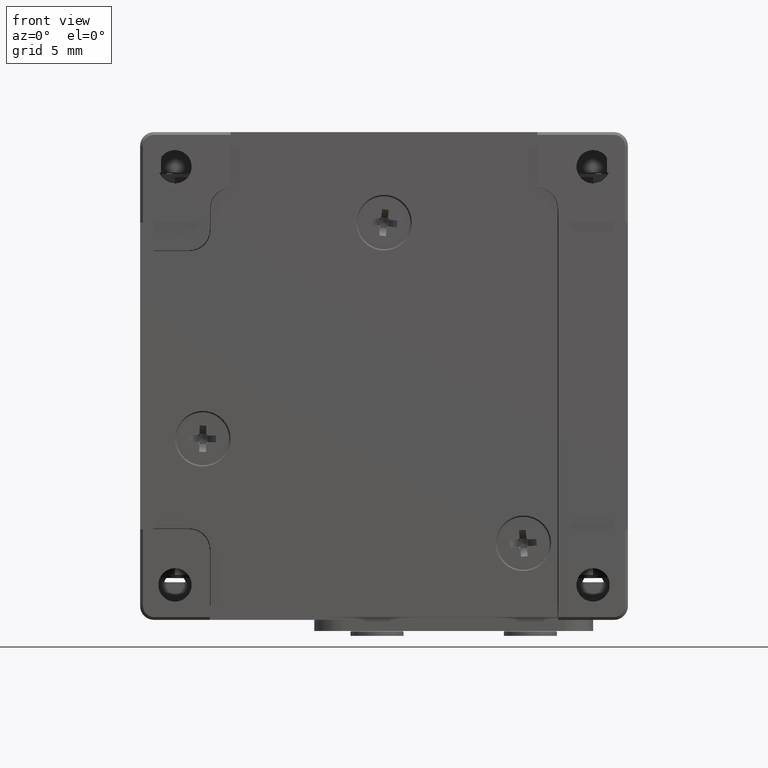
[diagram: clean part render]
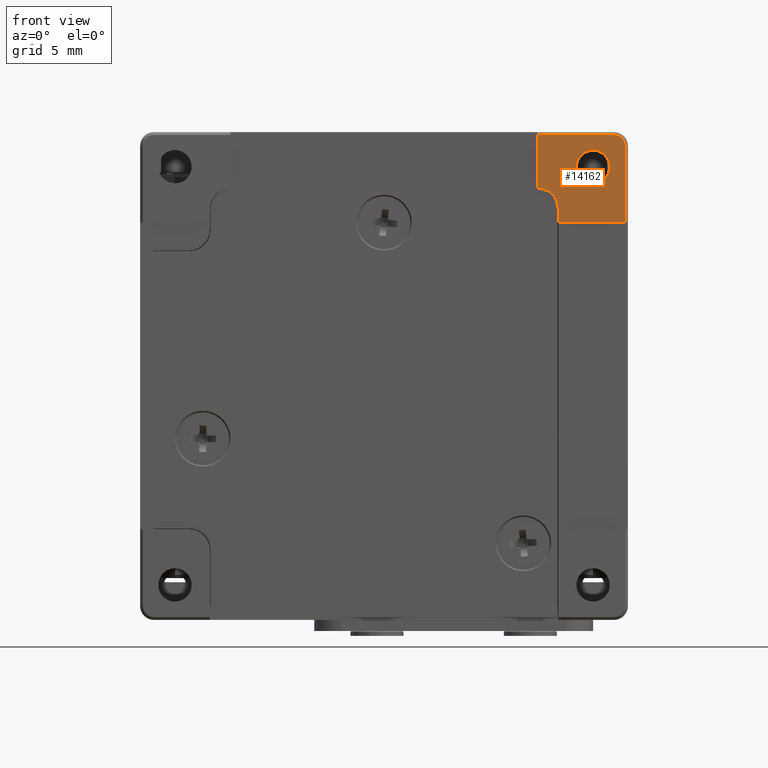
[diagram: same view with one face highlighted and labeled with its STEP entity id]
A machine part, front view. The second image highlights one B-rep face of the part: STEP entity #14162.
In plain terms, the highlighted planar face has unit normal (0, -1, 0).
Its self-contained STEP definition (entity closure, byte-faithful):
#871 = CARTESIAN_POINT ( 'NONE',  ( 15.00000000000000533, -8.673617379884035472E-16, 15.00000000000000000 ) ) ;
#947 = DIRECTION ( 'NONE',  ( 1.000000000000000000, 0.000000000000000000, 0.000000000000000000 ) ) ;
#1224 = CARTESIAN_POINT ( 'NONE',  ( 0.000000000000000000, 0.000000000000000000, 10.99999999999998934 ) ) ;
#1371 = EDGE_CURVE ( 'NONE', #12625, #8602, #16946, .T. ) ;
#1811 = EDGE_CURVE ( 'NONE', #16829, #5053, #13309, .T. ) ;
#1961 = CARTESIAN_POINT ( 'NONE',  ( 12.50000000000000000, 0.000000000000000000, 10.99999999999998934 ) ) ;
#2337 = CARTESIAN_POINT ( 'NONE',  ( 11.00000000000000355, 0.000000000000000000, 13.50000000000000178 ) ) ;
#2340 = DIRECTION ( 'NONE',  ( 0.000000000000000000, 0.000000000000000000, 1.000000000000000000 ) ) ;
#2597 = LINE ( 'NONE', #1224, #9422 ) ;
#3185 = VECTOR ( 'NONE', #947, 1000.000000000000000 ) ;
#3724 = CARTESIAN_POINT ( 'NONE',  ( 16.50000000000000000, 5.684344596586232701E-11, 16.50000000000000000 ) ) ;
#4644 = CARTESIAN_POINT ( 'NONE',  ( 0.000000000000000000, 0.000000000000000000, 0.000000000000000000 ) ) ;
#4783 = AXIS2_PLACEMENT_3D ( 'NONE', #18024, #6994, #11793 ) ;
#5053 = VERTEX_POINT ( 'NONE', #2337 ) ;
#5242 = AXIS2_PLACEMENT_3D ( 'NONE', #4644, #6204, #9423 ) ;
#5757 = CIRCLE ( 'NONE', #4783, 1.499999999999999556 ) ;
#5999 = EDGE_CURVE ( 'NONE', #13834, #13834, #12993, .T. ) ;
#6204 = DIRECTION ( 'NONE',  ( 0.000000000000000000, -1.000000000000000000, 0.000000000000000000 ) ) ;
#6800 = ORIENTED_EDGE ( 'NONE', *, *, #7137, .T. ) ;
#6838 = DIRECTION ( 'NONE',  ( 0.000000000000000000, -0.000000000000000000, -1.000000000000000000 ) ) ;
#6994 = DIRECTION ( 'NONE',  ( 0.000000000000000000, 1.000000000000000000, -0.000000000000000000 ) ) ;
#7071 = EDGE_LOOP ( 'NONE', ( #6800, #18258, #14188, #14159, #20023, #17676, #12961 ) ) ;
#7134 = LINE ( 'NONE', #16754, #15881 ) ;
#7137 = EDGE_CURVE ( 'NONE', #5053, #17583, #5757, .T. ) ;
#7498 = ORIENTED_EDGE ( 'NONE', *, *, #5999, .T. ) ;
#7598 = CARTESIAN_POINT ( 'NONE',  ( 17.30000000002185345, 8.526514184373917837E-11, 16.50000000000000000 ) ) ;
#8356 = CARTESIAN_POINT ( 'NONE',  ( 17.30000000000001137, 0.000000000000000000, 10.99999999999999467 ) ) ;
#8602 = VERTEX_POINT ( 'NONE', #7598 ) ;
#9046 = DIRECTION ( 'NONE',  ( -1.000000000000000000, 0.000000000000000000, -0.000000000000000000 ) ) ;
#9316 = CARTESIAN_POINT ( 'NONE',  ( 11.00000000000001066, 0.000000000000000000, 17.29999999998865334 ) ) ;
#9422 = VECTOR ( 'NONE', #9046, 1000.000000000000000 ) ;
#9423 = DIRECTION ( 'NONE',  ( 0.000000000000000000, -0.000000000000000000, -1.000000000000000000 ) ) ;
#10858 = EDGE_CURVE ( 'NONE', #16829, #15650, #15151, .T. ) ;
#11150 = VECTOR ( 'NONE', #15103, 1000.000000000000000 ) ;
#11336 = AXIS2_PLACEMENT_3D ( 'NONE', #871, #13585, #16735 ) ;
#11693 = EDGE_CURVE ( 'NONE', #8602, #15650, #12704, .T. ) ;
#11793 = DIRECTION ( 'NONE',  ( 0.000000000000000000, 0.000000000000000000, 1.000000000000000000 ) ) ;
#12274 = CARTESIAN_POINT ( 'NONE',  ( 15.00000000000000533, -4.510281037539706334E-16, 16.19999999999999929 ) ) ;
#12625 = VERTEX_POINT ( 'NONE', #8356 ) ;
#12654 = FACE_OUTER_BOUND ( 'NONE', #7071, .T. ) ;
#12704 = CIRCLE ( 'NONE', #19111, 0.7999999999774437542 ) ;
#12961 = ORIENTED_EDGE ( 'NONE', *, *, #1811, .T. ) ;
#12993 = CIRCLE ( 'NONE', #11336, 1.199999999999999734 ) ;
#13180 = CARTESIAN_POINT ( 'NONE',  ( 12.50000000000000000, 0.000000000000000000, 12.00000000000000178 ) ) ;
#13309 = LINE ( 'NONE', #16372, #11150 ) ;
#13510 = DIRECTION ( 'NONE',  ( -1.355252715782526432E-17, -1.000000000000000000, -0.000000000000000000 ) ) ;
#13585 = DIRECTION ( 'NONE',  ( -0.000000000000000000, 1.000000000000000000, -3.469446951953613696E-16 ) ) ;
#13758 = CARTESIAN_POINT ( 'NONE',  ( 0.000000000000000000, 0.000000000000000000, 17.30000000000001137 ) ) ;
#13834 = VERTEX_POINT ( 'NONE', #12274 ) ;
#14159 = ORIENTED_EDGE ( 'NONE', *, *, #1371, .T. ) ;
#14162 = ADVANCED_FACE ( 'NONE', ( #14335, #12654 ), #20678, .T. ) ;
#14188 = ORIENTED_EDGE ( 'NONE', *, *, #15781, .F. ) ;
#14335 = FACE_BOUND ( 'NONE', #14725, .T. ) ;
#14725 = EDGE_LOOP ( 'NONE', ( #7498 ) ) ;
#15103 = DIRECTION ( 'NONE',  ( 0.000000000000000000, -0.000000000000000000, -1.000000000000000000 ) ) ;
#15151 = LINE ( 'NONE', #13758, #3185 ) ;
#15164 = VECTOR ( 'NONE', #2340, 1000.000000000000000 ) ;
#15650 = VERTEX_POINT ( 'NONE', #17884 ) ;
#15781 = EDGE_CURVE ( 'NONE', #12625, #17182, #2597, .T. ) ;
#15881 = VECTOR ( 'NONE', #6838, 1000.000000000000000 ) ;
#16372 = CARTESIAN_POINT ( 'NONE',  ( 11.00000000000000711, 0.000000000000000000, 0.000000000000000000 ) ) ;
#16637 = CARTESIAN_POINT ( 'NONE',  ( 17.30000000000001137, 0.000000000000000000, 0.000000000000000000 ) ) ;
#16735 = DIRECTION ( 'NONE',  ( 0.000000000000000000, 3.469446951953608272E-16, 1.000000000000000000 ) ) ;
#16754 = CARTESIAN_POINT ( 'NONE',  ( 12.50000000000000000, 0.000000000000000000, 0.000000000000000000 ) ) ;
#16829 = VERTEX_POINT ( 'NONE', #9316 ) ;
#16946 = LINE ( 'NONE', #16637, #15164 ) ;
#17182 = VERTEX_POINT ( 'NONE', #1961 ) ;
#17583 = VERTEX_POINT ( 'NONE', #13180 ) ;
#17676 = ORIENTED_EDGE ( 'NONE', *, *, #10858, .F. ) ;
#17884 = CARTESIAN_POINT ( 'NONE',  ( 16.50000000000000711, 2.842172298293116350E-11, 17.30000000002843308 ) ) ;
#18024 = CARTESIAN_POINT ( 'NONE',  ( 11.00000000000000000, 0.000000000000000000, 12.00000000000000178 ) ) ;
#18258 = ORIENTED_EDGE ( 'NONE', *, *, #19488, .T. ) ;
#18482 = DIRECTION ( 'NONE',  ( -1.000000000000000000, 1.355252715329548017E-17, 0.000000000000000000 ) ) ;
#19111 = AXIS2_PLACEMENT_3D ( 'NONE', #3724, #13510, #18482 ) ;
#19488 = EDGE_CURVE ( 'NONE', #17583, #17182, #7134, .T. ) ;
#20023 = ORIENTED_EDGE ( 'NONE', *, *, #11693, .T. ) ;
#20678 = PLANE ( 'NONE',  #5242 ) ;